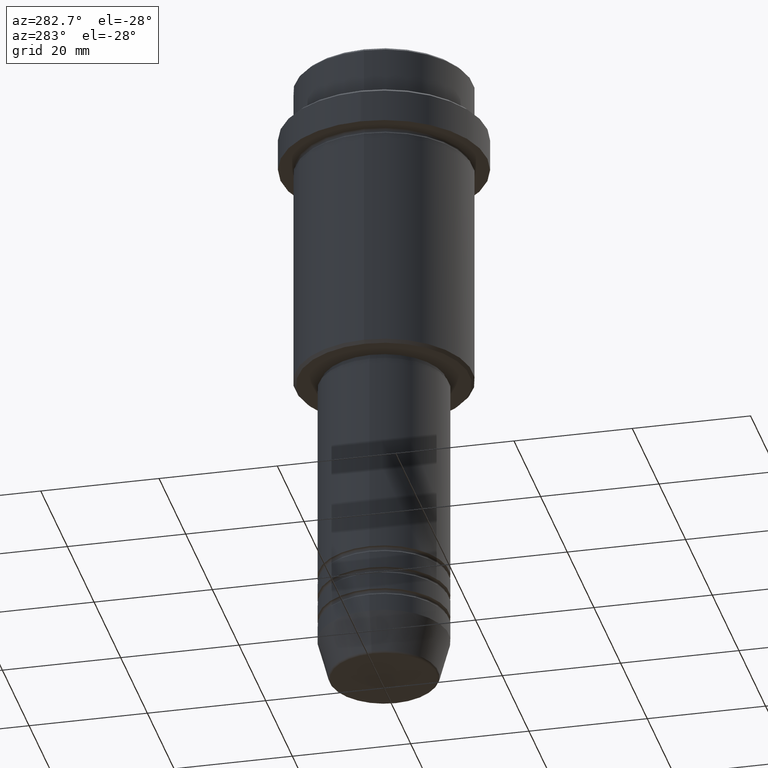
[diagram: clean part render]
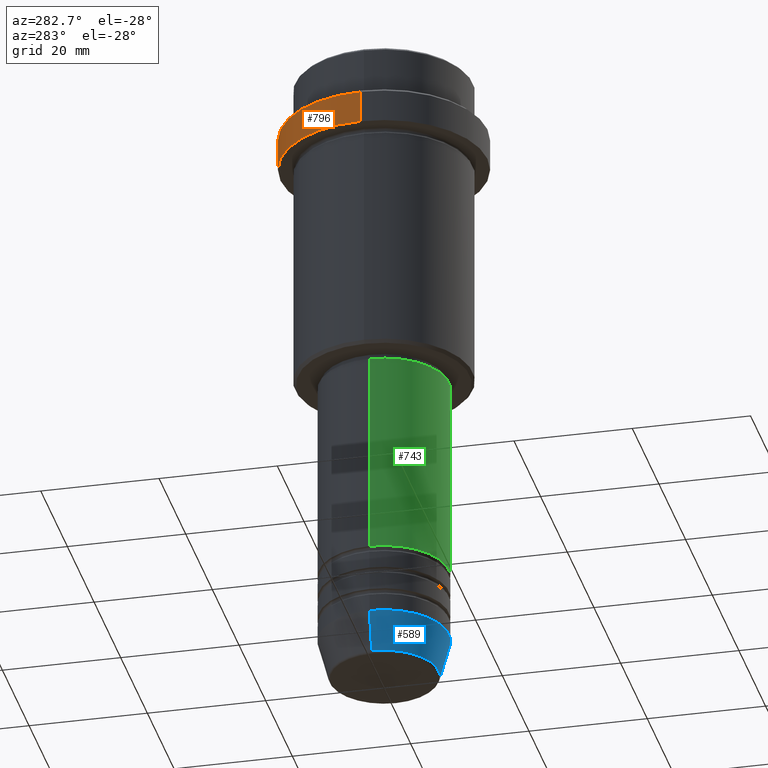
[diagram: same view with three faces highlighted in distinct colors, each labeled with its STEP entity id]
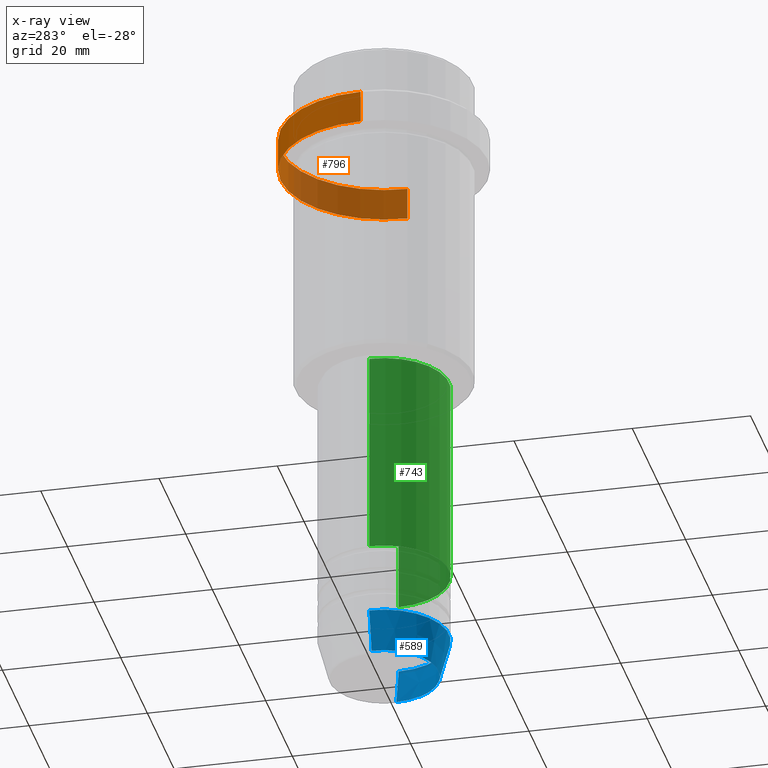
[diagram: x-ray of the same camera — body ghosted, the three highlighted faces saturated]
A machine part, auxiliary view with three faces highlighted in distinct colors.
The next image is the same camera in x-ray (body ghosted, the three faces saturated) — at least one of them is partly hidden behind the body in this view.
Their STEP definitions:

[orange] entity #796 — the highlighted cylindrical surface (partial cylindrical patch) has radius 17.5 mm, axis along (-0, -0, 1).
#2 = ORIENTED_EDGE ( 'NONE', *, *, #535, .T. ) ;
#57 = EDGE_CURVE ( 'NONE', #957, #1413, #368, .T. ) ;
#146 = DIRECTION ( 'NONE',  ( 1.000000000000000000, 0.000000000000000000, 0.000000000000000000 ) ) ;
#149 = DIRECTION ( 'NONE',  ( -0.000000000000000000, -0.000000000000000000, 1.000000000000000000 ) ) ;
#158 = CARTESIAN_POINT ( 'NONE',  ( 17.50000000000000000, 0.000000000000000000, -9.499999999999973355 ) ) ;
#238 = DIRECTION ( 'NONE',  ( -0.000000000000000000, -0.000000000000000000, 1.000000000000000000 ) ) ;
#242 = DIRECTION ( 'NONE',  ( -0.000000000000000000, -0.000000000000000000, 1.000000000000000000 ) ) ;
#256 = FACE_OUTER_BOUND ( 'NONE', #1305, .T. ) ;
#271 = CARTESIAN_POINT ( 'NONE',  ( 17.50000000000000000, 0.000000000000000000, -15.00000000000000178 ) ) ;
#272 = DIRECTION ( 'NONE',  ( 0.000000000000000000, 0.000000000000000000, -1.000000000000000000 ) ) ;
#288 = CARTESIAN_POINT ( 'NONE',  ( 0.000000000000000000, 0.000000000000000000, -15.00000000000000178 ) ) ;
#368 = LINE ( 'NONE', #795, #1372 ) ;
#372 = EDGE_CURVE ( 'NONE', #687, #747, #461, .T. ) ;
#424 = VECTOR ( 'NONE', #242, 1000.000000000000000 ) ;
#461 = LINE ( 'NONE', #1327, #424 ) ;
#535 = EDGE_CURVE ( 'NONE', #747, #1413, #1011, .T. ) ;
#547 = EDGE_CURVE ( 'NONE', #957, #687, #990, .T. ) ;
#569 = CARTESIAN_POINT ( 'NONE',  ( 0.000000000000000000, 0.000000000000000000, 0.000000000000000000 ) ) ;
#598 = DIRECTION ( 'NONE',  ( 1.000000000000000000, 0.000000000000000000, 0.000000000000000000 ) ) ;
#664 = ORIENTED_EDGE ( 'NONE', *, *, #372, .T. ) ;
#683 = CARTESIAN_POINT ( 'NONE',  ( -17.50000000000000000, 2.143131898507868248E-15, -9.499999999999973355 ) ) ;
#687 = VERTEX_POINT ( 'NONE', #1207 ) ;
#718 = ORIENTED_EDGE ( 'NONE', *, *, #547, .T. ) ;
#747 = VERTEX_POINT ( 'NONE', #683 ) ;
#795 = CARTESIAN_POINT ( 'NONE',  ( 17.50000000000000000, 0.000000000000000000, 0.000000000000000000 ) ) ;
#796 = ADVANCED_FACE ( 'NONE', ( #256 ), #1338, .T. ) ;
#941 = AXIS2_PLACEMENT_3D ( 'NONE', #569, #238, #146 ) ;
#957 = VERTEX_POINT ( 'NONE', #271 ) ;
#990 = CIRCLE ( 'NONE', #1259, 17.50000000000000000 ) ;
#1011 = CIRCLE ( 'NONE', #1287, 17.50000000000000000 ) ;
#1113 = ORIENTED_EDGE ( 'NONE', *, *, #57, .F. ) ;
#1154 = DIRECTION ( 'NONE',  ( -0.000000000000000000, -0.000000000000000000, 1.000000000000000000 ) ) ;
#1207 = CARTESIAN_POINT ( 'NONE',  ( -17.50000000000000000, 2.143131898507868248E-15, -15.00000000000000178 ) ) ;
#1258 = CARTESIAN_POINT ( 'NONE',  ( 0.000000000000000000, 0.000000000000000000, -9.499999999999973355 ) ) ;
#1259 = AXIS2_PLACEMENT_3D ( 'NONE', #288, #1154, #1398 ) ;
#1287 = AXIS2_PLACEMENT_3D ( 'NONE', #1258, #272, #598 ) ;
#1305 = EDGE_LOOP ( 'NONE', ( #718, #664, #2, #1113 ) ) ;
#1327 = CARTESIAN_POINT ( 'NONE',  ( -17.50000000000000000, 2.143131898507868248E-15, 0.000000000000000000 ) ) ;
#1338 = CYLINDRICAL_SURFACE ( 'NONE', #941, 17.50000000000000000 ) ;
#1372 = VECTOR ( 'NONE', #149, 1000.000000000000000 ) ;
#1398 = DIRECTION ( 'NONE',  ( 1.000000000000000000, 0.000000000000000000, 0.000000000000000000 ) ) ;
#1413 = VERTEX_POINT ( 'NONE', #158 ) ;

[blue] entity #589 — the highlighted conical surface has half-angle 15 deg.
#73 = CONICAL_SURFACE ( 'NONE', #426, 11.00000000000000000, 0.2617993877991505736 ) ;
#83 = DIRECTION ( 'NONE',  ( 1.000000000000000000, 0.000000000000000000, 0.000000000000000000 ) ) ;
#114 = EDGE_CURVE ( 'NONE', #281, #745, #296, .T. ) ;
#117 = CARTESIAN_POINT ( 'NONE',  ( 11.00000000000000000, 0.000000000000000000, -103.0000000000000142 ) ) ;
#174 = CARTESIAN_POINT ( 'NONE',  ( 0.000000000000000000, 0.000000000000000000, -109.6294095225512564 ) ) ;
#189 = AXIS2_PLACEMENT_3D ( 'NONE', #174, #389, #1357 ) ;
#258 = VECTOR ( 'NONE', #1321, 1000.000000000000000 ) ;
#281 = VERTEX_POINT ( 'NONE', #1091 ) ;
#296 = LINE ( 'NONE', #525, #1217 ) ;
#316 = ORIENTED_EDGE ( 'NONE', *, *, #397, .F. ) ;
#352 = EDGE_CURVE ( 'NONE', #1002, #1152, #570, .T. ) ;
#389 = DIRECTION ( 'NONE',  ( -0.000000000000000000, -0.000000000000000000, 1.000000000000000000 ) ) ;
#397 = EDGE_CURVE ( 'NONE', #745, #1152, #1236, .T. ) ;
#426 = AXIS2_PLACEMENT_3D ( 'NONE', #1189, #959, #83 ) ;
#457 = EDGE_CURVE ( 'NONE', #281, #1002, #936, .T. ) ;
#517 = CARTESIAN_POINT ( 'NONE',  ( 0.000000000000000000, 0.000000000000000000, -103.0000000000000142 ) ) ;
#525 = CARTESIAN_POINT ( 'NONE',  ( -11.00000000000000000, 1.347111479062088405E-15, -103.0000000000000142 ) ) ;
#529 = FACE_OUTER_BOUND ( 'NONE', #1049, .T. ) ;
#559 = CARTESIAN_POINT ( 'NONE',  ( -11.00000000000000000, 1.347111479062088405E-15, -103.0000000000000142 ) ) ;
#570 = LINE ( 'NONE', #881, #258 ) ;
#589 = ADVANCED_FACE ( 'NONE', ( #529 ), #73, .T. ) ;
#721 = DIRECTION ( 'NONE',  ( -0.2588190451025218497, 3.169619151431778500E-17, 0.9659258262890679791 ) ) ;
#728 = CARTESIAN_POINT ( 'NONE',  ( 9.223655072137191269, 0.000000000000000000, -109.6294095225512564 ) ) ;
#745 = VERTEX_POINT ( 'NONE', #559 ) ;
#814 = ORIENTED_EDGE ( 'NONE', *, *, #352, .T. ) ;
#881 = CARTESIAN_POINT ( 'NONE',  ( 11.00000000000000000, 0.000000000000000000, -103.0000000000000142 ) ) ;
#907 = ORIENTED_EDGE ( 'NONE', *, *, #114, .F. ) ;
#934 = DIRECTION ( 'NONE',  ( -0.000000000000000000, -0.000000000000000000, 1.000000000000000000 ) ) ;
#936 = CIRCLE ( 'NONE', #189, 9.223655072137191269 ) ;
#959 = DIRECTION ( 'NONE',  ( -0.000000000000000000, -0.000000000000000000, 1.000000000000000000 ) ) ;
#1002 = VERTEX_POINT ( 'NONE', #728 ) ;
#1040 = DIRECTION ( 'NONE',  ( 1.000000000000000000, 0.000000000000000000, 0.000000000000000000 ) ) ;
#1049 = EDGE_LOOP ( 'NONE', ( #907, #1210, #814, #316 ) ) ;
#1091 = CARTESIAN_POINT ( 'NONE',  ( -9.223655072137191269, 1.238341722557647202E-15, -109.6294095225512564 ) ) ;
#1152 = VERTEX_POINT ( 'NONE', #117 ) ;
#1189 = CARTESIAN_POINT ( 'NONE',  ( 0.000000000000000000, 0.000000000000000000, -103.0000000000000142 ) ) ;
#1210 = ORIENTED_EDGE ( 'NONE', *, *, #457, .T. ) ;
#1217 = VECTOR ( 'NONE', #721, 1000.000000000000000 ) ;
#1236 = CIRCLE ( 'NONE', #1333, 11.00000000000000000 ) ;
#1321 = DIRECTION ( 'NONE',  ( 0.2588190451025218497, 0.000000000000000000, 0.9659258262890679791 ) ) ;
#1333 = AXIS2_PLACEMENT_3D ( 'NONE', #517, #934, #1040 ) ;
#1357 = DIRECTION ( 'NONE',  ( 1.000000000000000000, 0.000000000000000000, 0.000000000000000000 ) ) ;

[green] entity #743 — the highlighted cylindrical surface (partial cylindrical patch) has radius 11 mm, axis along (-0, -0, 1).
#21 = LINE ( 'NONE', #1124, #335 ) ;
#100 = DIRECTION ( 'NONE',  ( -0.000000000000000000, -0.000000000000000000, 1.000000000000000000 ) ) ;
#119 = FACE_OUTER_BOUND ( 'NONE', #462, .T. ) ;
#226 = DIRECTION ( 'NONE',  ( 1.000000000000000000, 0.000000000000000000, 0.000000000000000000 ) ) ;
#326 = CARTESIAN_POINT ( 'NONE',  ( 0.000000000000000000, 0.000000000000000000, -90.99999999999988631 ) ) ;
#335 = VECTOR ( 'NONE', #688, 1000.000000000000000 ) ;
#348 = VERTEX_POINT ( 'NONE', #1214 ) ;
#448 = ORIENTED_EDGE ( 'NONE', *, *, #703, .T. ) ;
#462 = EDGE_LOOP ( 'NONE', ( #1136, #898, #448, #1119 ) ) ;
#534 = AXIS2_PLACEMENT_3D ( 'NONE', #1116, #908, #1331 ) ;
#586 = DIRECTION ( 'NONE',  ( 1.000000000000000000, 0.000000000000000000, 0.000000000000000000 ) ) ;
#666 = VERTEX_POINT ( 'NONE', #953 ) ;
#668 = LINE ( 'NONE', #1326, #695 ) ;
#679 = EDGE_CURVE ( 'NONE', #348, #1388, #786, .T. ) ;
#688 = DIRECTION ( 'NONE',  ( -0.000000000000000000, -0.000000000000000000, 1.000000000000000000 ) ) ;
#690 = EDGE_CURVE ( 'NONE', #666, #348, #21, .T. ) ;
#695 = VECTOR ( 'NONE', #1120, 1000.000000000000000 ) ;
#703 = EDGE_CURVE ( 'NONE', #917, #1388, #668, .T. ) ;
#736 = AXIS2_PLACEMENT_3D ( 'NONE', #891, #1010, #586 ) ;
#743 = ADVANCED_FACE ( 'NONE', ( #119 ), #1110, .T. ) ;
#786 = CIRCLE ( 'NONE', #736, 10.99999999999999822 ) ;
#856 = CIRCLE ( 'NONE', #1149, 11.00000000000000000 ) ;
#891 = CARTESIAN_POINT ( 'NONE',  ( 0.000000000000000000, 0.000000000000000000, -55.99999999999997868 ) ) ;
#898 = ORIENTED_EDGE ( 'NONE', *, *, #1284, .T. ) ;
#908 = DIRECTION ( 'NONE',  ( -0.000000000000000000, -0.000000000000000000, 1.000000000000000000 ) ) ;
#917 = VERTEX_POINT ( 'NONE', #1367 ) ;
#953 = CARTESIAN_POINT ( 'NONE',  ( -11.00000000000000000, 1.347111479062088405E-15, -90.99999999999988631 ) ) ;
#1010 = DIRECTION ( 'NONE',  ( -0.000000000000000000, -0.000000000000000000, 1.000000000000000000 ) ) ;
#1110 = CYLINDRICAL_SURFACE ( 'NONE', #534, 11.00000000000000000 ) ;
#1116 = CARTESIAN_POINT ( 'NONE',  ( 0.000000000000000000, 0.000000000000000000, 0.000000000000000000 ) ) ;
#1119 = ORIENTED_EDGE ( 'NONE', *, *, #679, .F. ) ;
#1120 = DIRECTION ( 'NONE',  ( -0.000000000000000000, -0.000000000000000000, 1.000000000000000000 ) ) ;
#1124 = CARTESIAN_POINT ( 'NONE',  ( -11.00000000000000000, 1.347111479062088405E-15, 0.000000000000000000 ) ) ;
#1136 = ORIENTED_EDGE ( 'NONE', *, *, #690, .F. ) ;
#1149 = AXIS2_PLACEMENT_3D ( 'NONE', #326, #100, #226 ) ;
#1214 = CARTESIAN_POINT ( 'NONE',  ( -10.99999999999999822, 1.347111479062088207E-15, -55.99999999999997868 ) ) ;
#1269 = CARTESIAN_POINT ( 'NONE',  ( 10.99999999999999822, 0.000000000000000000, -55.99999999999997868 ) ) ;
#1284 = EDGE_CURVE ( 'NONE', #666, #917, #856, .T. ) ;
#1326 = CARTESIAN_POINT ( 'NONE',  ( 11.00000000000000000, 0.000000000000000000, 0.000000000000000000 ) ) ;
#1331 = DIRECTION ( 'NONE',  ( 1.000000000000000000, 0.000000000000000000, 0.000000000000000000 ) ) ;
#1367 = CARTESIAN_POINT ( 'NONE',  ( 11.00000000000000000, 0.000000000000000000, -90.99999999999988631 ) ) ;
#1388 = VERTEX_POINT ( 'NONE', #1269 ) ;